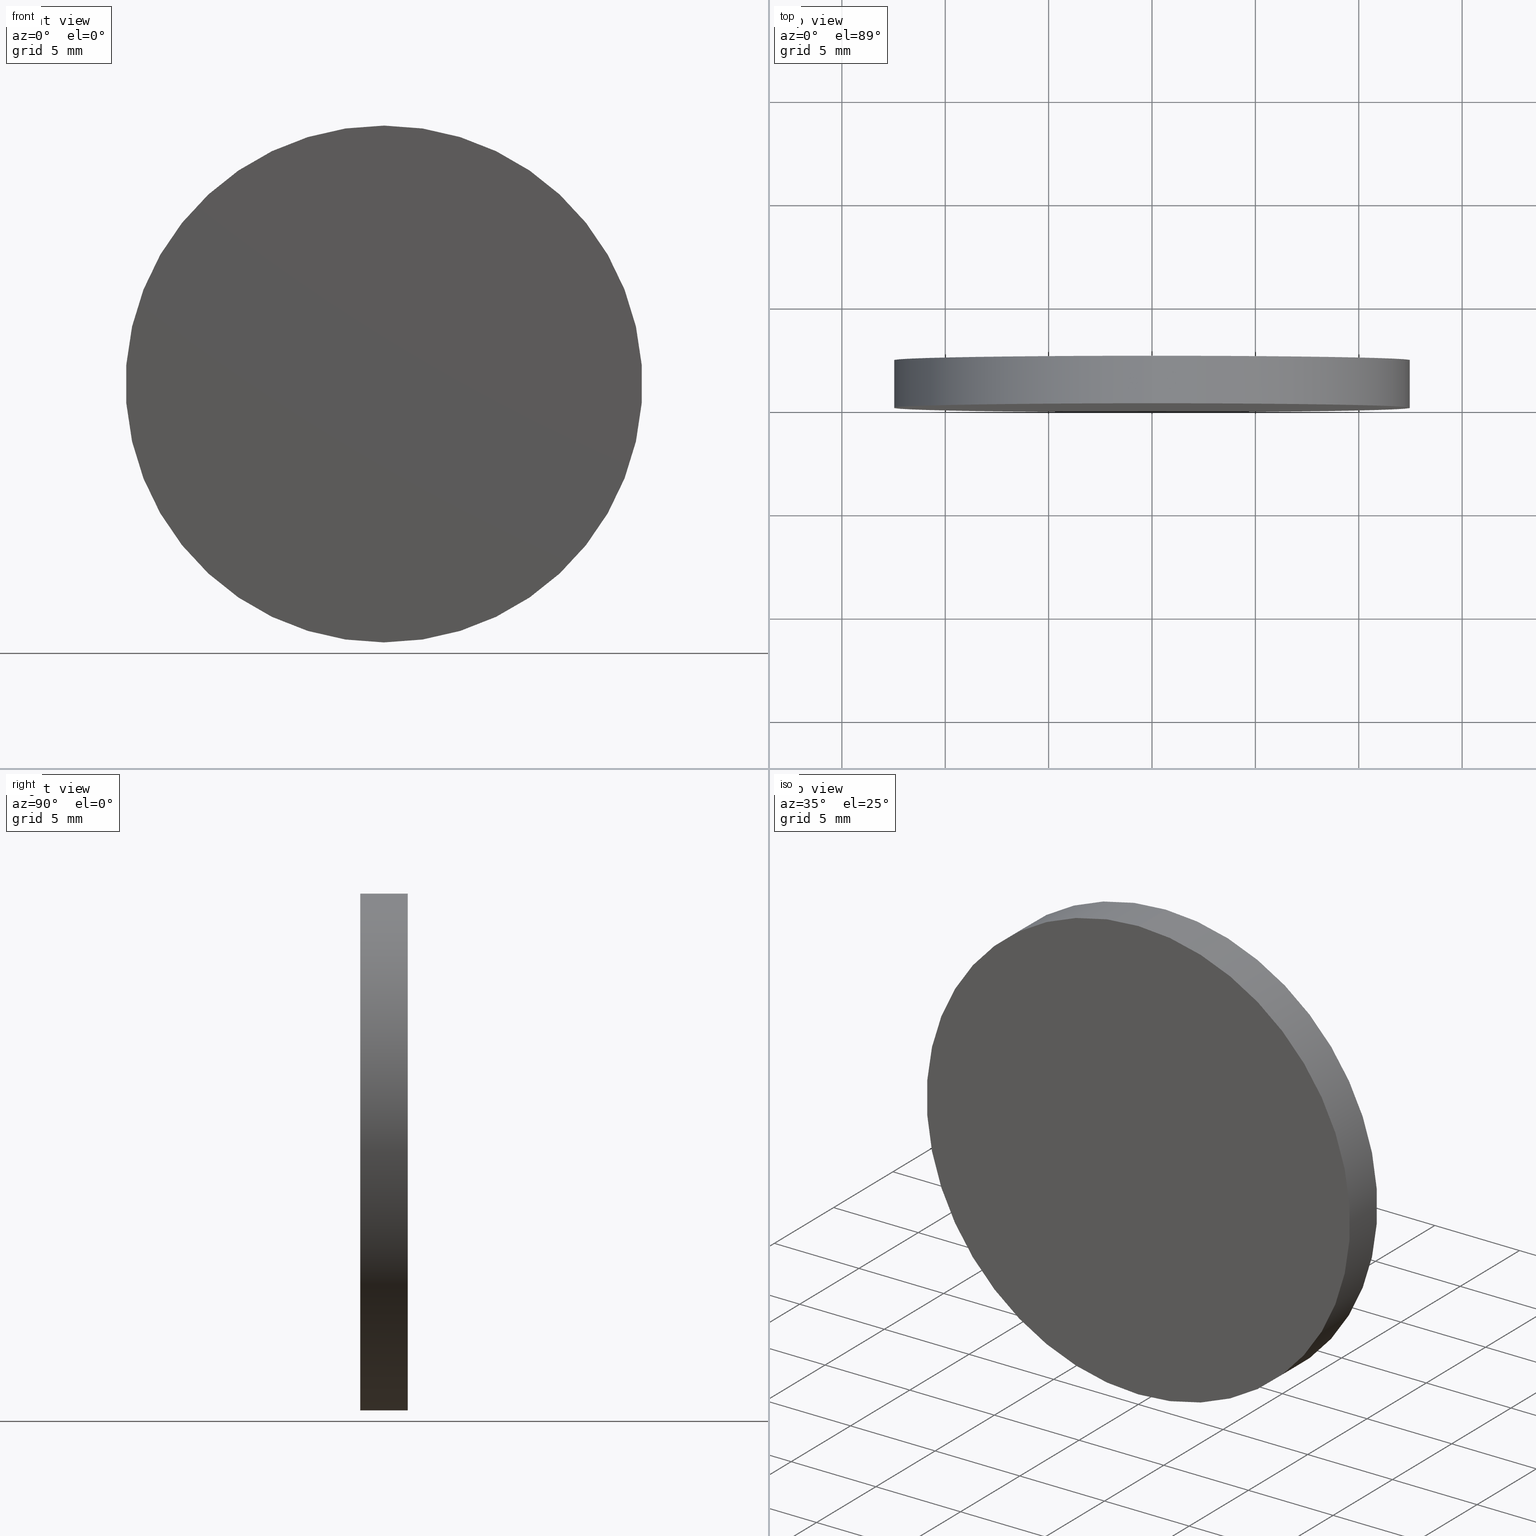
[diagram: canonical four-view strip — front | top / right | iso, engineering-drawing reading convention]
A machine part, canonical four-view strip (front | top / right | iso — engineering-drawing reading convention). The complete STEP part file that produces these views, byte-faithful:
ISO-10303-21;
HEADER;
FILE_DESCRIPTION (( 'STEP AP214' ),
    '1' );
FILE_NAME ('248590.STEP',
    '2019-08-06T03:32:58',
    ( 'user' ),
    ( '΢���й�' ),
    'SwSTEP 2.0',
    'SolidWorks 2016',
    '' );
FILE_SCHEMA (( 'AUTOMOTIVE_DESIGN' ));
ENDSEC;

DATA;
#1 = ADVANCED_FACE ( 'NONE', ( #109 ), #51, .T. ) ;
#2 = EDGE_CURVE ( 'NONE', #14, #42, #77, .T. ) ;
#3 =( NAMED_UNIT ( * ) SI_UNIT ( $, .STERADIAN. ) SOLID_ANGLE_UNIT ( ) );
#4 = SURFACE_STYLE_FILL_AREA ( #62 ) ;
#5 = CARTESIAN_POINT ( 'NONE',  ( 0.0000000000000000000, 0.0000000000000000000, 0.0000000000000000000 ) ) ;
#6 =( NAMED_UNIT ( * ) PLANE_ANGLE_UNIT ( ) SI_UNIT ( $, .RADIAN. ) );
#7 =( LENGTH_UNIT ( ) NAMED_UNIT ( * ) SI_UNIT ( .MILLI., .METRE. ) );
#8 = SURFACE_STYLE_USAGE ( .BOTH. , #10 ) ;
#9 = DIRECTION ( 'NONE',  ( 0.0000000000000000000, 1.000000000000000000, 0.0000000000000000000 ) ) ;
#10 = SURFACE_SIDE_STYLE ('',( #125 ) ) ;
#11 = APPLICATION_CONTEXT ( 'automotive_design' ) ;
#12 = AXIS2_PLACEMENT_3D ( 'NONE', #90, #52, #119 ) ;
#13 = APPLICATION_PROTOCOL_DEFINITION ( 'draft international standard', 'automotive_design', 1998, #11 ) ;
#14 = VERTEX_POINT ( 'NONE', #27 ) ;
#15 = EDGE_CURVE ( 'NONE', #42, #120, #85, .T. ) ;
#16 = UNCERTAINTY_MEASURE_WITH_UNIT (LENGTH_MEASURE( 1.000000000000000100E-005 ), #7, 'distance_accuracy_value', 'NONE');
#17 = MECHANICAL_DESIGN_GEOMETRIC_PRESENTATION_REPRESENTATION (  '', ( #24 ), #59 ) ;
#18 = LINE ( 'NONE', #63, #91 ) ;
#19 = DIRECTION ( 'NONE',  ( 0.0000000000000000000, 1.000000000000000000, 0.0000000000000000000 ) ) ;
#20 =( NAMED_UNIT ( * ) SI_UNIT ( $, .STERADIAN. ) SOLID_ANGLE_UNIT ( ) );
#21 = DIRECTION ( 'NONE',  ( 0.0000000000000000000, 0.0000000000000000000, 1.000000000000000000 ) ) ;
#22 = ORIENTED_EDGE ( 'NONE', *, *, #15, .T. ) ;
#23 = MANIFOLD_SOLID_BREP ( '͹̨-����1', #37 ) ;
#24 = STYLED_ITEM ( 'NONE', ( #137 ), #23 ) ;
#25 = PRODUCT_DEFINITION_CONTEXT ( 'detailed design', #33, 'design' ) ;
#26 =( NAMED_UNIT ( * ) PLANE_ANGLE_UNIT ( ) SI_UNIT ( $, .RADIAN. ) );
#27 = CARTESIAN_POINT ( 'NONE',  ( 1.530808498934191500E-015, 2.299999999999999800, 12.50000000000000000 ) ) ;
#28 = VECTOR ( 'NONE', #71, 1000.000000000000000 ) ;
#29 =( LENGTH_UNIT ( ) NAMED_UNIT ( * ) SI_UNIT ( .MILLI., .METRE. ) );
#30 = CARTESIAN_POINT ( 'NONE',  ( 0.0000000000000000000, 0.0000000000000000000, 0.0000000000000000000 ) ) ;
#31 = ORIENTED_EDGE ( 'NONE', *, *, #84, .T. ) ;
#32 = FACE_OUTER_BOUND ( 'NONE', #128, .T. ) ;
#33 = APPLICATION_CONTEXT ( 'automotive_design' ) ;
#34 = AXIS2_PLACEMENT_3D ( 'NONE', #57, #39, #129 ) ;
#35 = ORIENTED_EDGE ( 'NONE', *, *, #2, .T. ) ;
#36 = ORIENTED_EDGE ( 'NONE', *, *, #15, .F. ) ;
#37 = CLOSED_SHELL ( 'NONE', ( #1, #92, #118, #41 ) ) ;
#38 = UNCERTAINTY_MEASURE_WITH_UNIT (LENGTH_MEASURE( 1.000000000000000100E-005 ), #104, 'distance_accuracy_value', 'NONE');
#39 = DIRECTION ( 'NONE',  ( 0.0000000000000000000, 1.000000000000000000, 0.0000000000000000000 ) ) ;
#40 = EDGE_LOOP ( 'NONE', ( #76, #99, #80, #36 ) ) ;
#41 = ADVANCED_FACE ( 'NONE', ( #94 ), #122, .F. ) ;
#42 = VERTEX_POINT ( 'NONE', #79 ) ;
#43 = FILL_AREA_STYLE_COLOUR ( '', #121 ) ;
#44 =( GEOMETRIC_REPRESENTATION_CONTEXT ( 3 ) GLOBAL_UNCERTAINTY_ASSIGNED_CONTEXT ( ( #16 ) ) GLOBAL_UNIT_ASSIGNED_CONTEXT ( ( #7, #6, #3 ) ) REPRESENTATION_CONTEXT ( 'NONE', 'WORKASPACE' ) );
#45 = DIRECTION ( 'NONE',  ( 0.0000000000000000000, -0.0000000000000000000, 1.000000000000000000 ) ) ;
#46 = EDGE_CURVE ( 'NONE', #105, #120, #134, .T. ) ;
#47 = DIRECTION ( 'NONE',  ( 0.0000000000000000000, 1.000000000000000000, 0.0000000000000000000 ) ) ;
#48 = FILL_AREA_STYLE ('',( #43 ) ) ;
#49 = CARTESIAN_POINT ( 'NONE',  ( 0.0000000000000000000, 2.299999999999999800, 0.0000000000000000000 ) ) ;
#50 = DIRECTION ( 'NONE',  ( -0.0000000000000000000, -1.000000000000000000, -0.0000000000000000000 ) ) ;
#51 = CYLINDRICAL_SURFACE ( 'NONE', #12, 12.50000000000000000 ) ;
#52 = DIRECTION ( 'NONE',  ( -0.0000000000000000000, -1.000000000000000000, -0.0000000000000000000 ) ) ;
#53 = PRESENTATION_LAYER_ASSIGNMENT (  '', '', ( #24 ) ) ;
#54 = PRESENTATION_LAYER_ASSIGNMENT (  '', '', ( #78 ) ) ;
#55 = PRESENTATION_STYLE_ASSIGNMENT (( #8 ) ) ;
#56 = AXIS2_PLACEMENT_3D ( 'NONE', #30, #136, #95 ) ;
#57 = CARTESIAN_POINT ( 'NONE',  ( 0.0000000000000000000, 2.299999999999999800, 0.0000000000000000000 ) ) ;
#58 = CARTESIAN_POINT ( 'NONE',  ( 0.0000000000000000000, 0.0000000000000000000, -12.50000000000000000 ) ) ;
#59 =( GEOMETRIC_REPRESENTATION_CONTEXT ( 3 ) GLOBAL_UNCERTAINTY_ASSIGNED_CONTEXT ( ( #38 ) ) GLOBAL_UNIT_ASSIGNED_CONTEXT ( ( #104, #138, #132 ) ) REPRESENTATION_CONTEXT ( 'NONE', 'WORKASPACE' ) );
#60 =( GEOMETRIC_REPRESENTATION_CONTEXT ( 3 ) GLOBAL_UNCERTAINTY_ASSIGNED_CONTEXT ( ( #103 ) ) GLOBAL_UNIT_ASSIGNED_CONTEXT ( ( #29, #26, #20 ) ) REPRESENTATION_CONTEXT ( 'NONE', 'WORKASPACE' ) );
#61 = CARTESIAN_POINT ( 'NONE',  ( 1.530808498934191500E-015, 0.0000000000000000000, 12.50000000000000000 ) ) ;
#62 = FILL_AREA_STYLE ('',( #66 ) ) ;
#63 = CARTESIAN_POINT ( 'NONE',  ( 1.530808498934191500E-015, 2.299999999999999800, 12.50000000000000000 ) ) ;
#64 = ORIENTED_EDGE ( 'NONE', *, *, #115, .F. ) ;
#65 = DIRECTION ( 'NONE',  ( 0.0000000000000000000, 0.0000000000000000000, 1.000000000000000000 ) ) ;
#66 = FILL_AREA_STYLE_COLOUR ( '', #82 ) ;
#67 = ORIENTED_EDGE ( 'NONE', *, *, #46, .F. ) ;
#68 = EDGE_CURVE ( 'NONE', #120, #105, #75, .T. ) ;
#69 = DIRECTION ( 'NONE',  ( 0.0000000000000000000, 1.000000000000000000, 0.0000000000000000000 ) ) ;
#70 = CARTESIAN_POINT ( 'NONE',  ( 0.0000000000000000000, 0.0000000000000000000, 0.0000000000000000000 ) ) ;
#71 = DIRECTION ( 'NONE',  ( -0.0000000000000000000, -1.000000000000000000, -0.0000000000000000000 ) ) ;
#72 = CARTESIAN_POINT ( 'NONE',  ( 0.0000000000000000000, 2.299999999999999800, 0.0000000000000000000 ) ) ;
#73 = EDGE_LOOP ( 'NONE', ( #31, #35 ) ) ;
#74 = SHAPE_DEFINITION_REPRESENTATION ( #107, #131 ) ;
#75 = CIRCLE ( 'NONE', #114, 12.50000000000000000 ) ;
#76 = ORIENTED_EDGE ( 'NONE', *, *, #2, .F. ) ;
#77 = CIRCLE ( 'NONE', #34, 12.50000000000000000 ) ;
#78 = STYLED_ITEM ( 'NONE', ( #55 ), #131 ) ;
#79 = CARTESIAN_POINT ( 'NONE',  ( 0.0000000000000000000, 2.299999999999999800, -12.50000000000000000 ) ) ;
#80 = ORIENTED_EDGE ( 'NONE', *, *, #46, .T. ) ;
#81 = DIRECTION ( 'NONE',  ( 0.0000000000000000000, 0.0000000000000000000, -1.000000000000000000 ) ) ;
#82 = COLOUR_RGB ( '',1.000000000000000000, 1.000000000000000000, 1.000000000000000000 ) ;
#83 = CARTESIAN_POINT ( 'NONE',  ( 0.0000000000000000000, 2.299999999999999800, 0.0000000000000000000 ) ) ;
#84 = EDGE_CURVE ( 'NONE', #42, #14, #113, .T. ) ;
#85 = LINE ( 'NONE', #96, #28 ) ;
#86 = AXIS2_PLACEMENT_3D ( 'NONE', #83, #97, #81 ) ;
#87 = FACE_OUTER_BOUND ( 'NONE', #73, .T. ) ;
#88 = DIRECTION ( 'NONE',  ( 0.0000000000000000000, 0.0000000000000000000, 1.000000000000000000 ) ) ;
#89 = ORIENTED_EDGE ( 'NONE', *, *, #84, .F. ) ;
#90 = CARTESIAN_POINT ( 'NONE',  ( 0.0000000000000000000, 2.299999999999999800, 0.0000000000000000000 ) ) ;
#91 = VECTOR ( 'NONE', #50, 1000.000000000000000 ) ;
#92 = ADVANCED_FACE ( 'NONE', ( #32 ), #116, .T. ) ;
#93 = PRODUCT ( '248590', '248590', '', ( #110 ) ) ;
#94 = FACE_OUTER_BOUND ( 'NONE', #133, .T. ) ;
#95 = DIRECTION ( 'NONE',  ( 1.000000000000000000, 0.0000000000000000000, 0.0000000000000000000 ) ) ;
#96 = CARTESIAN_POINT ( 'NONE',  ( 0.0000000000000000000, 2.299999999999999800, -12.50000000000000000 ) ) ;
#97 = DIRECTION ( 'NONE',  ( -0.0000000000000000000, -1.000000000000000000, -0.0000000000000000000 ) ) ;
#98 = PRODUCT_DEFINITION_FORMATION_WITH_SPECIFIED_SOURCE ( '�κ�', '', #93, .NOT_KNOWN. ) ;
#99 = ORIENTED_EDGE ( 'NONE', *, *, #115, .T. ) ;
#100 = CARTESIAN_POINT ( 'NONE',  ( 0.0000000000000000000, 0.0000000000000000000, 0.0000000000000000000 ) ) ;
#101 = DIRECTION ( 'NONE',  ( 0.0000000000000000000, -0.0000000000000000000, 1.000000000000000000 ) ) ;
#102 = AXIS2_PLACEMENT_3D ( 'NONE', #70, #19, #101 ) ;
#103 = UNCERTAINTY_MEASURE_WITH_UNIT (LENGTH_MEASURE( 1.000000000000000100E-005 ), #29, 'distance_accuracy_value', 'NONE');
#104 =( LENGTH_UNIT ( ) NAMED_UNIT ( * ) SI_UNIT ( .MILLI., .METRE. ) );
#105 = VERTEX_POINT ( 'NONE', #61 ) ;
#106 = AXIS2_PLACEMENT_3D ( 'NONE', #49, #47, #45 ) ;
#107 = PRODUCT_DEFINITION_SHAPE ( 'NONE', 'NONE',  #139 ) ;
#108 = ORIENTED_EDGE ( 'NONE', *, *, #68, .T. ) ;
#109 = FACE_OUTER_BOUND ( 'NONE', #40, .T. ) ;
#110 = PRODUCT_CONTEXT ( 'NONE', #11, 'mechanical' ) ;
#111 = MECHANICAL_DESIGN_GEOMETRIC_PRESENTATION_REPRESENTATION (  '', ( #78 ), #44 ) ;
#112 = PRODUCT_RELATED_PRODUCT_CATEGORY ( 'part', '', ( #93 ) ) ;
#113 = CIRCLE ( 'NONE', #127, 12.50000000000000000 ) ;
#114 = AXIS2_PLACEMENT_3D ( 'NONE', #100, #130, #88 ) ;
#115 = EDGE_CURVE ( 'NONE', #14, #105, #18, .T. ) ;
#116 = CYLINDRICAL_SURFACE ( 'NONE', #86, 12.50000000000000000 ) ;
#117 = PLANE ( 'NONE',  #106 ) ;
#118 = ADVANCED_FACE ( 'NONE', ( #87 ), #117, .T. ) ;
#119 = DIRECTION ( 'NONE',  ( 0.0000000000000000000, 0.0000000000000000000, -1.000000000000000000 ) ) ;
#120 = VERTEX_POINT ( 'NONE', #58 ) ;
#121 = COLOUR_RGB ( '',1.000000000000000000, 1.000000000000000000, 1.000000000000000000 ) ;
#122 = PLANE ( 'NONE',  #102 ) ;
#123 = AXIS2_PLACEMENT_3D ( 'NONE', #5, #9, #21 ) ;
#124 = APPLICATION_PROTOCOL_DEFINITION ( 'draft international standard', 'automotive_design', 1998, #33 ) ;
#125 = SURFACE_STYLE_FILL_AREA ( #48 ) ;
#126 = SURFACE_STYLE_USAGE ( .BOTH. , #135 ) ;
#127 = AXIS2_PLACEMENT_3D ( 'NONE', #72, #69, #65 ) ;
#128 = EDGE_LOOP ( 'NONE', ( #64, #89, #22, #108 ) ) ;
#129 = DIRECTION ( 'NONE',  ( 0.0000000000000000000, 0.0000000000000000000, 1.000000000000000000 ) ) ;
#130 = DIRECTION ( 'NONE',  ( 0.0000000000000000000, 1.000000000000000000, 0.0000000000000000000 ) ) ;
#131 = ADVANCED_BREP_SHAPE_REPRESENTATION ( '248590', ( #23, #56 ), #60 ) ;
#132 =( NAMED_UNIT ( * ) SI_UNIT ( $, .STERADIAN. ) SOLID_ANGLE_UNIT ( ) );
#133 = EDGE_LOOP ( 'NONE', ( #140, #67 ) ) ;
#134 = CIRCLE ( 'NONE', #123, 12.50000000000000000 ) ;
#135 = SURFACE_SIDE_STYLE ('',( #4 ) ) ;
#136 = DIRECTION ( 'NONE',  ( 0.0000000000000000000, 0.0000000000000000000, 1.000000000000000000 ) ) ;
#137 = PRESENTATION_STYLE_ASSIGNMENT (( #126 ) ) ;
#138 =( NAMED_UNIT ( * ) PLANE_ANGLE_UNIT ( ) SI_UNIT ( $, .RADIAN. ) );
#139 = PRODUCT_DEFINITION ( 'δ֪', '', #98, #25 ) ;
#140 = ORIENTED_EDGE ( 'NONE', *, *, #68, .F. ) ;
ENDSEC;
END-ISO-10303-21;
